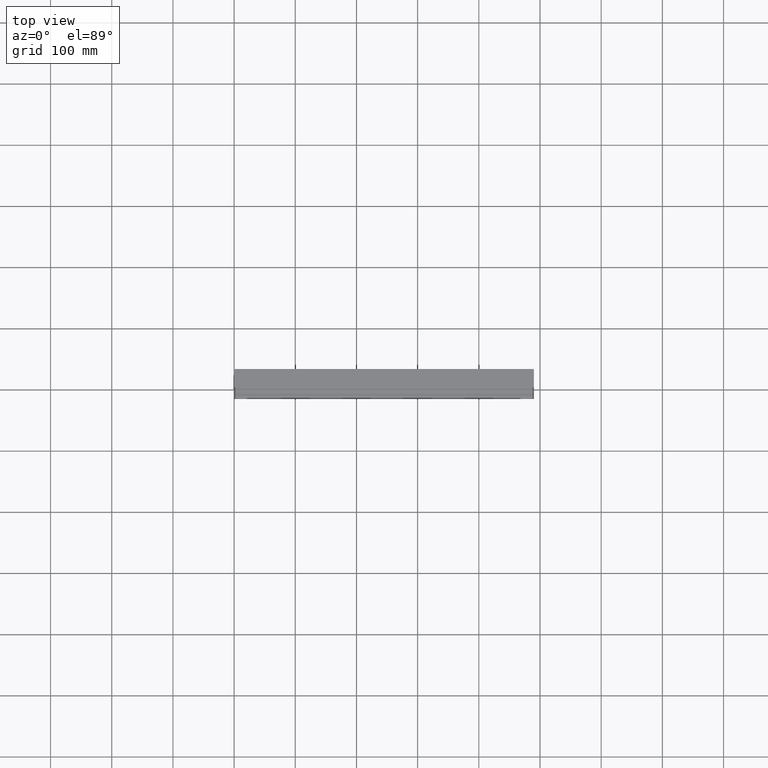
[diagram: clean part render]
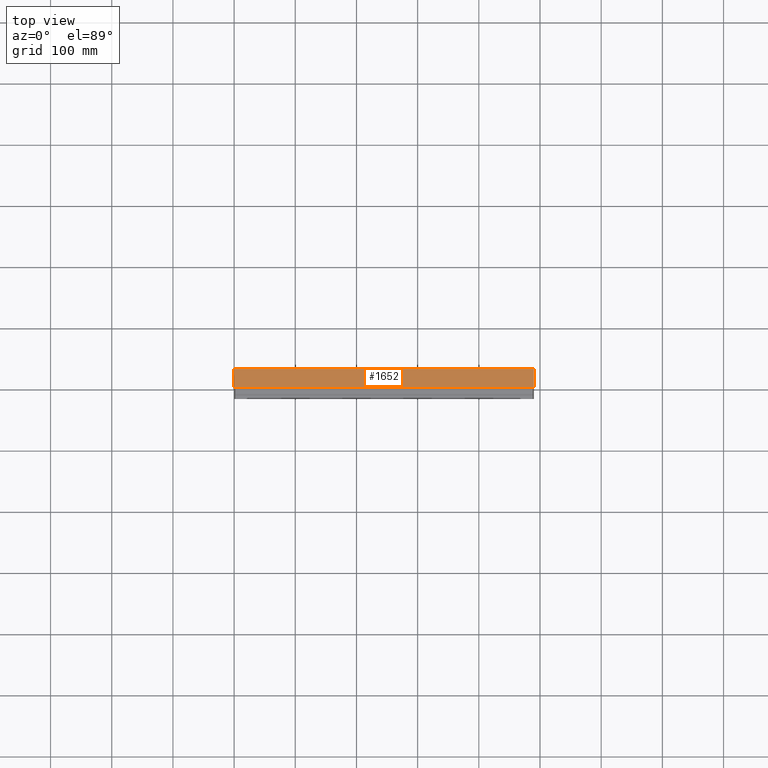
[diagram: same view with one face highlighted and labeled with its STEP entity id]
A machine part, top view. The second image highlights one B-rep face of the part: STEP entity #1652.
In plain terms, the highlighted planar face has unit normal (0, 0, -1).
Its self-contained STEP definition (entity closure, byte-faithful):
#393 = CARTESIAN_POINT ( 'NONE',  ( 3.061616997868391500E-016, -5.000000000000000900, 0.0000000000000000000 ) ) ;
#1200 = CARTESIAN_POINT ( 'NONE',  ( -2.755455298081543200E-015, 5.000000000000000900, 0.0000000000000000000 ) ) ;
#1652 = ADVANCED_FACE ( 'NONE', ( #20497 ), #42013, .F. ) ;
#5019 = ORIENTED_EDGE ( 'NONE', *, *, #66952, .F. ) ;
#6921 = EDGE_LOOP ( 'NONE', ( #74957, #5019, #58423, #58199 ) ) ;
#10138 = CARTESIAN_POINT ( 'NONE',  ( -1.873894674480064100E-028, 15.00000000000000000, -1.264388551353367100E-014 ) ) ;
#12824 = CARTESIAN_POINT ( 'NONE',  ( 1.683889348827610900E-015, -15.00000000000000000, -3.330669073875469600E-013 ) ) ;
#14435 = VECTOR ( 'NONE', #41383, 1000.000000000000000 ) ;
#14707 = VERTEX_POINT ( 'NONE', #12824 ) ;
#15948 = EDGE_CURVE ( 'NONE', #73813, #14707, #78032, .T. ) ;
#20497 = FACE_OUTER_BOUND ( 'NONE', #6921, .T. ) ;
#28200 = CARTESIAN_POINT ( 'NONE',  ( 489.9999999999999400, 15.00000000000000000, 1.665334536937734800E-013 ) ) ;
#39197 = VERTEX_POINT ( 'NONE', #10138 ) ;
#41383 = DIRECTION ( 'NONE',  ( -1.000000000000000000, 0.0000000000000000000, -2.580384798680370000E-017 ) ) ;
#42013 = PLANE ( 'NONE',  #79356 ) ;
#49310 = LINE ( 'NONE', #69690, #69497 ) ;
#52201 = EDGE_CURVE ( 'NONE', #73518, #73813, #64691, .T. ) ;
#55655 = CARTESIAN_POINT ( 'NONE',  ( 489.9999999999997700, -15.00000000000000000, -2.220446049250313100E-013 ) ) ;
#56149 = CARTESIAN_POINT ( 'NONE',  ( -1.873894674480064100E-028, 15.00000000000000000, -1.264388551353367100E-014 ) ) ;
#57927 = VECTOR ( 'NONE', #58970, 1000.000000000000000 ) ;
#58199 = ORIENTED_EDGE ( 'NONE', *, *, #52201, .F. ) ;
#58423 = ORIENTED_EDGE ( 'NONE', *, *, #15948, .F. ) ;
#58970 = DIRECTION ( 'NONE',  ( -3.061616997868383600E-016, -1.000000000000000000, -3.061616997868382600E-016 ) ) ;
#60873 = CARTESIAN_POINT ( 'NONE',  ( 490.0000000000000600, 14.99999999999953600, 0.0000000000000000000 ) ) ;
#64691 = LINE ( 'NONE', #71624, #57927 ) ;
#64856 = B_SPLINE_CURVE_WITH_KNOTS ( 'NONE', 3,
 ( #74448, #393, #1200, #56149 ),
 .UNSPECIFIED., .F., .F.,
 ( 4, 4 ),
 ( 0.0000000000000000000, 1.000000000000000000 ),
 .UNSPECIFIED. ) ;
#66805 = DIRECTION ( 'NONE',  ( 2.580384798680370000E-017, 3.061616997868382600E-016, -1.000000000000000000 ) ) ;
#66952 = EDGE_CURVE ( 'NONE', #14707, #39197, #64856, .T. ) ;
#69497 = VECTOR ( 'NONE', #75405, 1000.000000000000000 ) ;
#69690 = CARTESIAN_POINT ( 'NONE',  ( 489.9999999999999400, 15.00000000000000000, 1.665334536937734800E-013 ) ) ;
#71624 = CARTESIAN_POINT ( 'NONE',  ( 490.0000000000000600, 14.99999999999953600, 0.0000000000000000000 ) ) ;
#73441 = EDGE_CURVE ( 'NONE', #73518, #39197, #49310, .T. ) ;
#73518 = VERTEX_POINT ( 'NONE', #28200 ) ;
#73813 = VERTEX_POINT ( 'NONE', #55655 ) ;
#74448 = CARTESIAN_POINT ( 'NONE',  ( 1.683889348827610900E-015, -15.00000000000000000, -3.330669073875469600E-013 ) ) ;
#74957 = ORIENTED_EDGE ( 'NONE', *, *, #73441, .T. ) ;
#75405 = DIRECTION ( 'NONE',  ( -1.000000000000000000, 0.0000000000000000000, -2.580384798680370000E-017 ) ) ;
#78032 = LINE ( 'NONE', #78615, #14435 ) ;
#78615 = CARTESIAN_POINT ( 'NONE',  ( 489.9999999999997700, -15.00000000000000000, -2.220446049250313100E-013 ) ) ;
#79230 = DIRECTION ( 'NONE',  ( 0.0000000000000000000, 1.000000000000000000, 3.061616997868382600E-016 ) ) ;
#79356 = AXIS2_PLACEMENT_3D ( 'NONE', #60873, #66805, #79230 ) ;